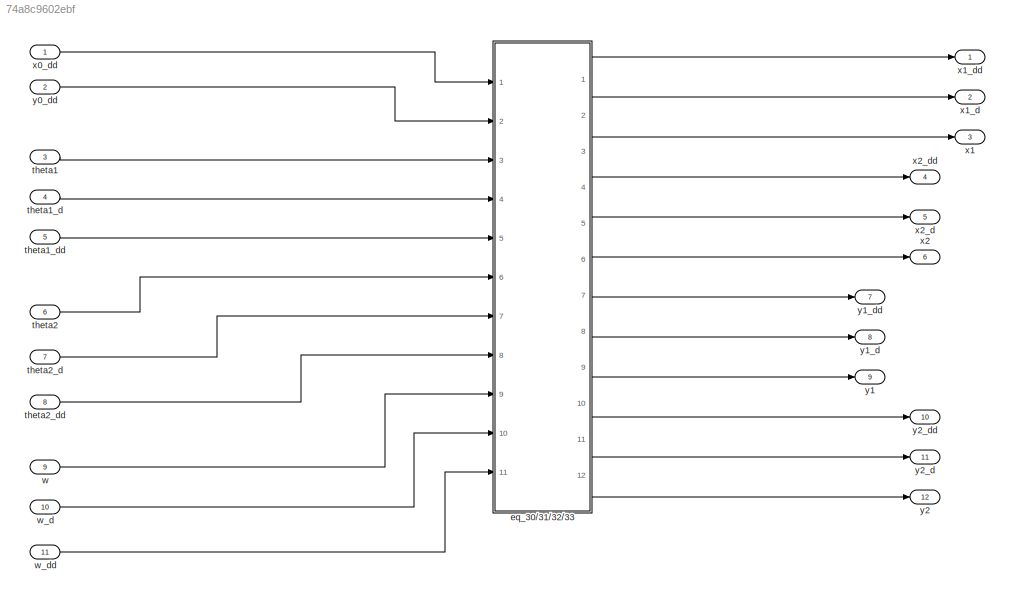
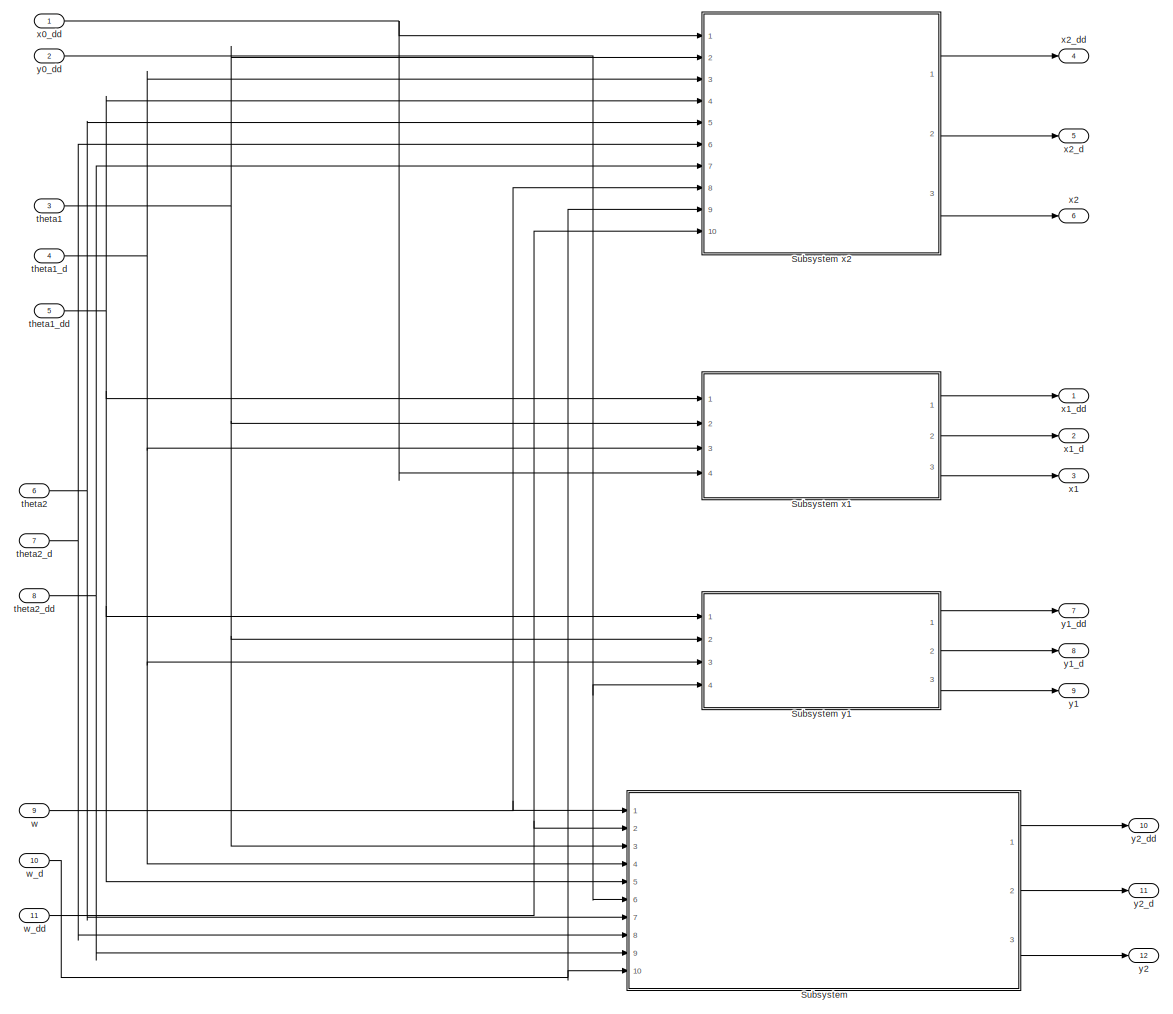
[diagram: eq_30/31/32/33  - part 1/1, most of the canvas]
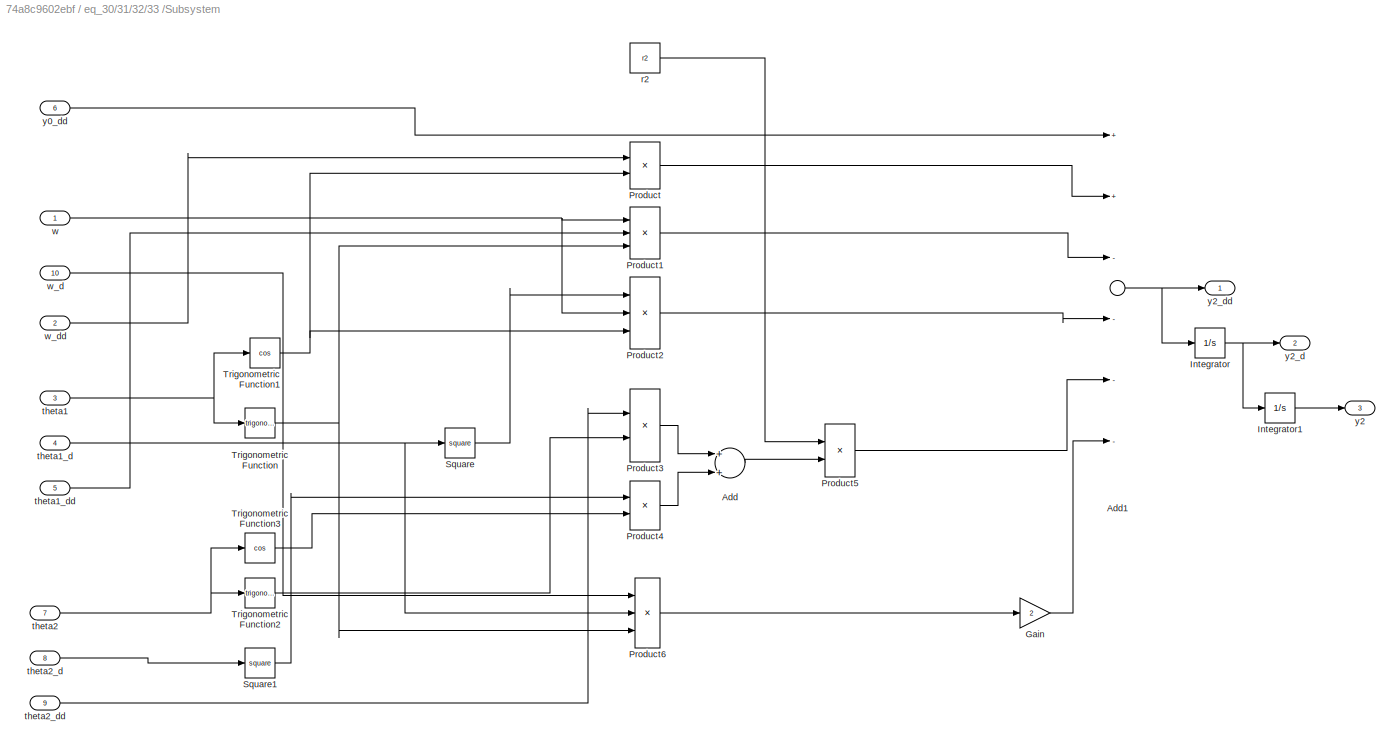
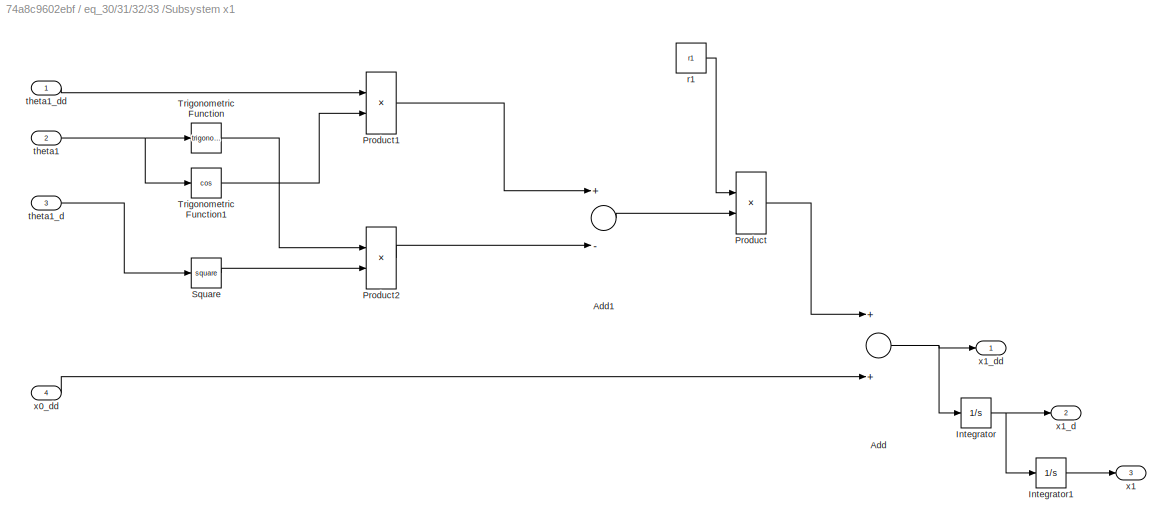
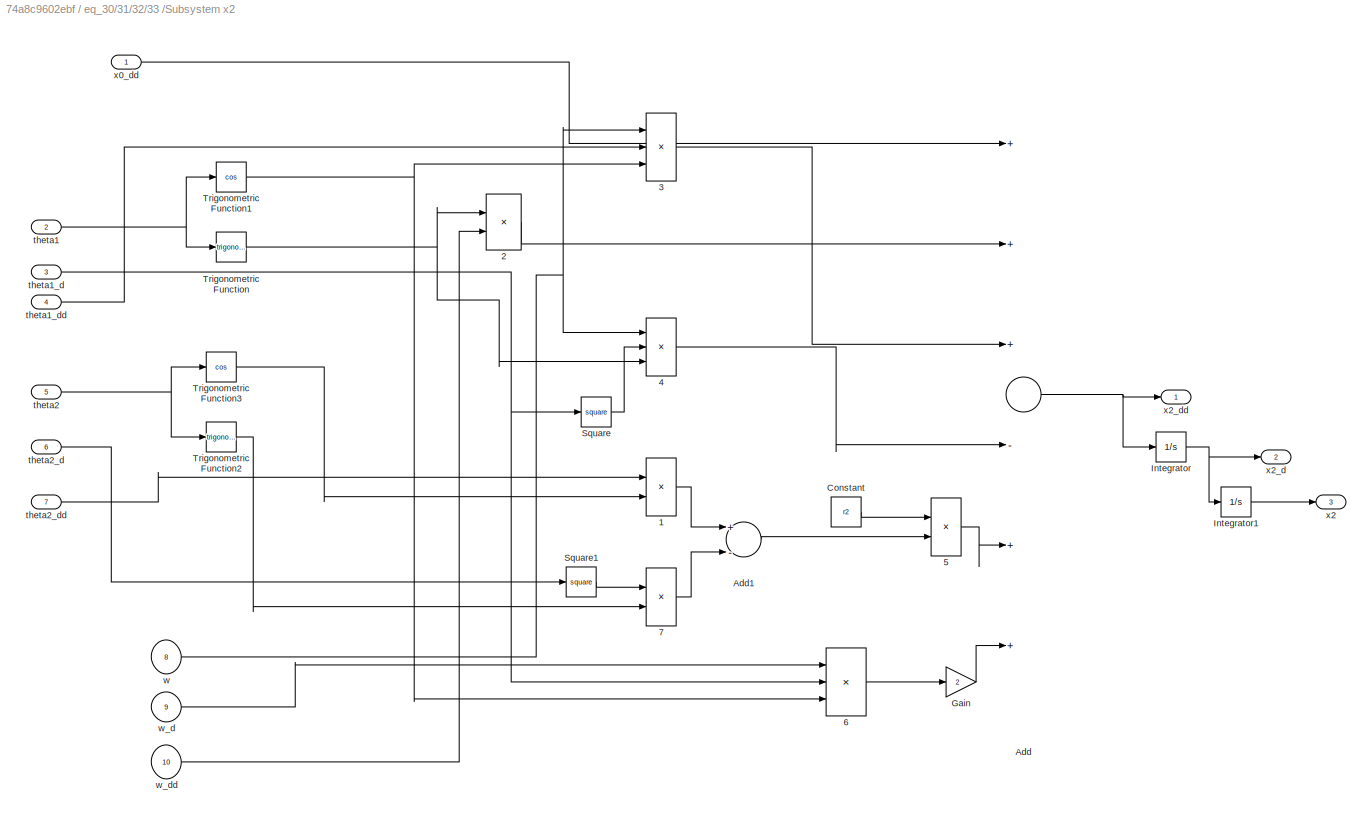
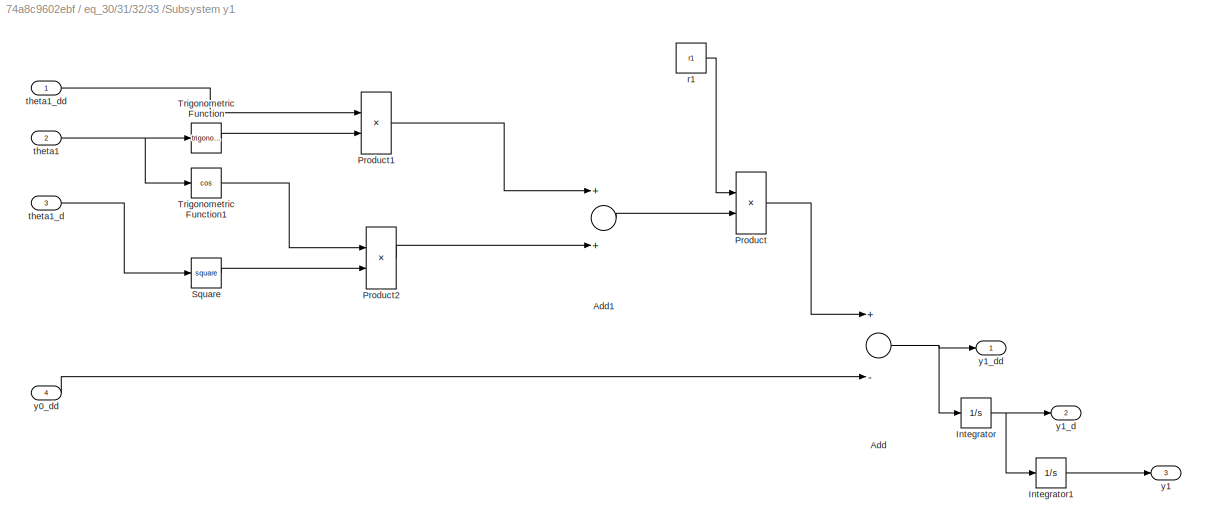
MODEL slx_74a8c9602ebf
KIND model
CONFIG AbsTol = auto
CONFIG EnableMultiTasking = off
CONFIG FixedStep = auto
CONFIG MaxStep = auto
CONFIG MinStep = auto
CONFIG RelTol = 1e-3
CONFIG SampleTimeConstraint = Unconstrained
CONFIG Solver = VariableStepAuto
CONFIG SolverName = VariableStepAuto
CONFIG StartTime = 0.0
CONFIG StopTime = 10.0
BLOCK [SubSystem] eq_30//31//32//33 
  Ports = [11, 12]
  RequestExecContextInheritance = off
BLOCK [SubSystem] eq_30//31//32//33 /Subsystem
  Ports = [10, 3]
  RequestExecContextInheritance = off
BLOCK [SubSystem] eq_30//31//32//33 /Subsystem x1
  Ports = [4, 3]
  RequestExecContextInheritance = off
BLOCK [Sum] eq_30//31//32//33 /Subsystem x1/Add
  InputSameDT = off
  OutDataTypeStr = Inherit: Inherit via internal rule
  Ports = [2, 1]
  SaturateOnIntegerOverflow = off
BLOCK [Sum] eq_30//31//32//33 /Subsystem x1/Add1
  InputSameDT = off
  Inputs = +-
  OutDataTypeStr = Inherit: Inherit via internal rule
  Ports = [2, 1]
  SaturateOnIntegerOverflow = off
BLOCK [Integrator] eq_30//31//32//33 /Subsystem x1/Integrator
  InitialCondition = ini_x1_d
  Ports = [1, 1]
BLOCK [Integrator] eq_30//31//32//33 /Subsystem x1/Integrator1
  InitialCondition = ini_x1
  Ports = [1, 1]
BLOCK [Product] eq_30//31//32//33 /Subsystem x1/Product
  InputSameDT = off
  OutDataTypeStr = Inherit: Inherit via internal rule
  Ports = [2, 1]
  RndMeth = Floor
  SaturateOnIntegerOverflow = off
BLOCK [Product] eq_30//31//32//33 /Subsystem x1/Product1
  InputSameDT = off
  OutDataTypeStr = Inherit: Inherit via internal rule
  Ports = [2, 1]
  RndMeth = Floor
  SaturateOnIntegerOverflow = off
BLOCK [Product] eq_30//31//32//33 /Subsystem x1/Product2
  InputSameDT = off
  OutDataTypeStr = Inherit: Inherit via internal rule
  Ports = [2, 1]
  RndMeth = Floor
  SaturateOnIntegerOverflow = off
BLOCK [Math] eq_30//31//32//33 /Subsystem x1/Square
  Operator = square
  Ports = [1, 1]
  SignedPower = off
BLOCK [Trigonometry] eq_30//31//32//33 /Subsystem x1/Trigonometric Function
  Ports = [1, 1]
BLOCK [Trigonometry] eq_30//31//32//33 /Subsystem x1/Trigonometric Function1
  Operator = cos
  Ports = [1, 1]
BLOCK [Constant] eq_30//31//32//33 /Subsystem x1/r1
  Value = r1
BLOCK [Inport] eq_30//31//32//33 /Subsystem x1/theta1
  IconDisplay = Port number
  Port = 2
BLOCK [Inport] eq_30//31//32//33 /Subsystem x1/theta1_d
  IconDisplay = Port number
  Port = 3
BLOCK [Inport] eq_30//31//32//33 /Subsystem x1/theta1_dd 
  IconDisplay = Port number
BLOCK [Inport] eq_30//31//32//33 /Subsystem x1/x0_dd
  IconDisplay = Port number
  Port = 4
BLOCK [Outport] eq_30//31//32//33 /Subsystem x1/x1
  IconDisplay = Port number
  Port = 3
BLOCK [Outport] eq_30//31//32//33 /Subsystem x1/x1_d
  IconDisplay = Port number
  Port = 2
BLOCK [Outport] eq_30//31//32//33 /Subsystem x1/x1_dd
  IconDisplay = Port number
BLOCK [SubSystem] eq_30//31//32//33 /Subsystem x2
  Ports = [10, 3]
  RequestExecContextInheritance = off
BLOCK [Product] eq_30//31//32//33 /Subsystem x2/1
  InputSameDT = off
  OutDataTypeStr = Inherit: Inherit via internal rule
  Ports = [2, 1]
  RndMeth = Floor
  SaturateOnIntegerOverflow = off
BLOCK [Product] eq_30//31//32//33 /Subsystem x2/2
  InputSameDT = off
  OutDataTypeStr = Inherit: Inherit via internal rule
  Ports = [2, 1]
  RndMeth = Floor
  SaturateOnIntegerOverflow = off
BLOCK [Product] eq_30//31//32//33 /Subsystem x2/3
  InputSameDT = off
  Inputs = 3
  OutDataTypeStr = Inherit: Inherit via internal rule
  Ports = [3, 1]
  RndMeth = Floor
  SaturateOnIntegerOverflow = off
BLOCK [Product] eq_30//31//32//33 /Subsystem x2/4
  InputSameDT = off
  Inputs = 3
  OutDataTypeStr = Inherit: Inherit via internal rule
  Ports = [3, 1]
  RndMeth = Floor
  SaturateOnIntegerOverflow = off
BLOCK [Product] eq_30//31//32//33 /Subsystem x2/5
  InputSameDT = off
  OutDataTypeStr = Inherit: Inherit via internal rule
  Ports = [2, 1]
  RndMeth = Floor
  SaturateOnIntegerOverflow = off
BLOCK [Product] eq_30//31//32//33 /Subsystem x2/6
  InputSameDT = off
  Inputs = 3
  OutDataTypeStr = Inherit: Inherit via internal rule
  Ports = [3, 1]
  RndMeth = Floor
  SaturateOnIntegerOverflow = off
BLOCK [Product] eq_30//31//32//33 /Subsystem x2/7
  InputSameDT = off
  OutDataTypeStr = Inherit: Inherit via internal rule
  Ports = [2, 1]
  RndMeth = Floor
  SaturateOnIntegerOverflow = off
BLOCK [Sum] eq_30//31//32//33 /Subsystem x2/Add
  InputSameDT = off
  Inputs = +++-++
  OutDataTypeStr = Inherit: Inherit via internal rule
  Ports = [6, 1]
  SaturateOnIntegerOverflow = off
BLOCK [Sum] eq_30//31//32//33 /Subsystem x2/Add1
  InputSameDT = off
  Inputs = +-
  OutDataTypeStr = Inherit: Inherit via internal rule
  Ports = [2, 1]
  SaturateOnIntegerOverflow = off
BLOCK [Constant] eq_30//31//32//33 /Subsystem x2/Constant
  Value = r2
BLOCK [Gain] eq_30//31//32//33 /Subsystem x2/Gain
  Gain = 2
  OutDataTypeStr = Inherit: Inherit via internal rule
  ParamDataTypeStr = Inherit: Inherit via internal rule
  SaturateOnIntegerOverflow = off
BLOCK [Integrator] eq_30//31//32//33 /Subsystem x2/Integrator
  InitialCondition = ini_x2_d
  Ports = [1, 1]
BLOCK [Integrator] eq_30//31//32//33 /Subsystem x2/Integrator1
  InitialCondition = ini_x2
  Ports = [1, 1]
BLOCK [Math] eq_30//31//32//33 /Subsystem x2/Square
  Operator = square
  Ports = [1, 1]
  SignedPower = off
BLOCK [Math] eq_30//31//32//33 /Subsystem x2/Square1
  Operator = square
  Ports = [1, 1]
  SignedPower = off
BLOCK [Trigonometry] eq_30//31//32//33 /Subsystem x2/Trigonometric Function
  Ports = [1, 1]
BLOCK [Trigonometry] eq_30//31//32//33 /Subsystem x2/Trigonometric Function1
  Operator = cos
  Ports = [1, 1]
BLOCK [Trigonometry] eq_30//31//32//33 /Subsystem x2/Trigonometric Function2
  Ports = [1, 1]
BLOCK [Trigonometry] eq_30//31//32//33 /Subsystem x2/Trigonometric Function3
  Operator = cos
  Ports = [1, 1]
BLOCK [Inport] eq_30//31//32//33 /Subsystem x2/theta1
  IconDisplay = Port number
  Port = 2
BLOCK [Inport] eq_30//31//32//33 /Subsystem x2/theta1_d
  IconDisplay = Port number
  Port = 3
BLOCK [Inport] eq_30//31//32//33 /Subsystem x2/theta1_dd
  IconDisplay = Port number
  Port = 4
BLOCK [Inport] eq_30//31//32//33 /Subsystem x2/theta2
  IconDisplay = Port number
  Port = 5
BLOCK [Inport] eq_30//31//32//33 /Subsystem x2/theta2_d
  IconDisplay = Port number
  Port = 6
BLOCK [Inport] eq_30//31//32//33 /Subsystem x2/theta2_dd 
  IconDisplay = Port number
  Port = 7
BLOCK [Inport] eq_30//31//32//33 /Subsystem x2/w
  IconDisplay = Port number
  Port = 8
BLOCK [Inport] eq_30//31//32//33 /Subsystem x2/w_d
  IconDisplay = Port number
  Port = 9
BLOCK [Inport] eq_30//31//32//33 /Subsystem x2/w_dd
  IconDisplay = Port number
  Port = 10
BLOCK [Inport] eq_30//31//32//33 /Subsystem x2/x0_dd
  IconDisplay = Port number
BLOCK [Outport] eq_30//31//32//33 /Subsystem x2/x2
  IconDisplay = Port number
  Port = 3
BLOCK [Outport] eq_30//31//32//33 /Subsystem x2/x2_d
  IconDisplay = Port number
  Port = 2
BLOCK [Outport] eq_30//31//32//33 /Subsystem x2/x2_dd
  IconDisplay = Port number
BLOCK [SubSystem] eq_30//31//32//33 /Subsystem y1
  Ports = [4, 3]
  RequestExecContextInheritance = off
BLOCK [Sum] eq_30//31//32//33 /Subsystem y1/Add
  InputSameDT = off
  Inputs = +-
  OutDataTypeStr = Inherit: Inherit via internal rule
  Ports = [2, 1]
  SaturateOnIntegerOverflow = off
BLOCK [Sum] eq_30//31//32//33 /Subsystem y1/Add1
  InputSameDT = off
  OutDataTypeStr = Inherit: Inherit via internal rule
  Ports = [2, 1]
  SaturateOnIntegerOverflow = off
BLOCK [Integrator] eq_30//31//32//33 /Subsystem y1/Integrator
  InitialCondition = ini_y1_d
  Ports = [1, 1]
BLOCK [Integrator] eq_30//31//32//33 /Subsystem y1/Integrator1
  InitialCondition = ini_y1
  Ports = [1, 1]
BLOCK [Product] eq_30//31//32//33 /Subsystem y1/Product
  InputSameDT = off
  OutDataTypeStr = Inherit: Inherit via internal rule
  Ports = [2, 1]
  RndMeth = Floor
  SaturateOnIntegerOverflow = off
BLOCK [Product] eq_30//31//32//33 /Subsystem y1/Product1
  InputSameDT = off
  OutDataTypeStr = Inherit: Inherit via internal rule
  Ports = [2, 1]
  RndMeth = Floor
  SaturateOnIntegerOverflow = off
BLOCK [Product] eq_30//31//32//33 /Subsystem y1/Product2
  InputSameDT = off
  OutDataTypeStr = Inherit: Inherit via internal rule
  Ports = [2, 1]
  RndMeth = Floor
  SaturateOnIntegerOverflow = off
BLOCK [Math] eq_30//31//32//33 /Subsystem y1/Square
  Operator = square
  Ports = [1, 1]
  SignedPower = off
BLOCK [Trigonometry] eq_30//31//32//33 /Subsystem y1/Trigonometric Function
  Ports = [1, 1]
BLOCK [Trigonometry] eq_30//31//32//33 /Subsystem y1/Trigonometric Function1
  Operator = cos
  Ports = [1, 1]
BLOCK [Constant] eq_30//31//32//33 /Subsystem y1/r1
  Value = r1
BLOCK [Inport] eq_30//31//32//33 /Subsystem y1/theta1
  IconDisplay = Port number
  Port = 2
BLOCK [Inport] eq_30//31//32//33 /Subsystem y1/theta1_d
  IconDisplay = Port number
  Port = 3
BLOCK [Inport] eq_30//31//32//33 /Subsystem y1/theta1_dd 
  IconDisplay = Port number
BLOCK [Inport] eq_30//31//32//33 /Subsystem y1/y0_dd
  IconDisplay = Port number
  Port = 4
BLOCK [Outport] eq_30//31//32//33 /Subsystem y1/y1
  IconDisplay = Port number
  Port = 3
BLOCK [Outport] eq_30//31//32//33 /Subsystem y1/y1_d
  IconDisplay = Port number
  Port = 2
BLOCK [Outport] eq_30//31//32//33 /Subsystem y1/y1_dd
  IconDisplay = Port number
BLOCK [Sum] eq_30//31//32//33 /Subsystem/Add
  InputSameDT = off
  OutDataTypeStr = Inherit: Inherit via internal rule
  Ports = [2, 1]
  SaturateOnIntegerOverflow = off
BLOCK [Sum] eq_30//31//32//33 /Subsystem/Add1
  InputSameDT = off
  Inputs = ++----
  OutDataTypeStr = Inherit: Inherit via internal rule
  Ports = [6, 1]
  SaturateOnIntegerOverflow = off
BLOCK [Gain] eq_30//31//32//33 /Subsystem/Gain
  Gain = 2
  OutDataTypeStr = Inherit: Inherit via internal rule
  ParamDataTypeStr = Inherit: Inherit via internal rule
  SaturateOnIntegerOverflow = off
BLOCK [Integrator] eq_30//31//32//33 /Subsystem/Integrator
  InitialCondition = ini_y2_d
  Ports = [1, 1]
BLOCK [Integrator] eq_30//31//32//33 /Subsystem/Integrator1
  InitialCondition = ini_y2
  Ports = [1, 1]
BLOCK [Product] eq_30//31//32//33 /Subsystem/Product
  InputSameDT = off
  OutDataTypeStr = Inherit: Inherit via internal rule
  Ports = [2, 1]
  RndMeth = Floor
  SaturateOnIntegerOverflow = off
BLOCK [Product] eq_30//31//32//33 /Subsystem/Product1
  InputSameDT = off
  Inputs = 3
  OutDataTypeStr = Inherit: Inherit via internal rule
  Ports = [3, 1]
  RndMeth = Floor
  SaturateOnIntegerOverflow = off
BLOCK [Product] eq_30//31//32//33 /Subsystem/Product2
  InputSameDT = off
  Inputs = 3
  OutDataTypeStr = Inherit: Inherit via internal rule
  Ports = [3, 1]
  RndMeth = Floor
  SaturateOnIntegerOverflow = off
BLOCK [Product] eq_30//31//32//33 /Subsystem/Product3
  InputSameDT = off
  OutDataTypeStr = Inherit: Inherit via internal rule
  Ports = [2, 1]
  RndMeth = Floor
  SaturateOnIntegerOverflow = off
BLOCK [Product] eq_30//31//32//33 /Subsystem/Product4
  InputSameDT = off
  OutDataTypeStr = Inherit: Inherit via internal rule
  Ports = [2, 1]
  RndMeth = Floor
  SaturateOnIntegerOverflow = off
BLOCK [Product] eq_30//31//32//33 /Subsystem/Product5
  InputSameDT = off
  OutDataTypeStr = Inherit: Inherit via internal rule
  Ports = [2, 1]
  RndMeth = Floor
  SaturateOnIntegerOverflow = off
BLOCK [Product] eq_30//31//32//33 /Subsystem/Product6
  InputSameDT = off
  Inputs = 3
  OutDataTypeStr = Inherit: Inherit via internal rule
  Ports = [3, 1]
  RndMeth = Floor
  SaturateOnIntegerOverflow = off
BLOCK [Math] eq_30//31//32//33 /Subsystem/Square
  Operator = square
  Ports = [1, 1]
  SignedPower = off
BLOCK [Math] eq_30//31//32//33 /Subsystem/Square1
  Operator = square
  Ports = [1, 1]
  SignedPower = off
BLOCK [Trigonometry] eq_30//31//32//33 /Subsystem/Trigonometric Function
  Ports = [1, 1]
BLOCK [Trigonometry] eq_30//31//32//33 /Subsystem/Trigonometric Function1
  Operator = cos
  Ports = [1, 1]
BLOCK [Trigonometry] eq_30//31//32//33 /Subsystem/Trigonometric Function2
  Ports = [1, 1]
BLOCK [Trigonometry] eq_30//31//32//33 /Subsystem/Trigonometric Function3
  Operator = cos
  Ports = [1, 1]
BLOCK [Constant] eq_30//31//32//33 /Subsystem/r2
  Value = r2
BLOCK [Inport] eq_30//31//32//33 /Subsystem/theta1
  IconDisplay = Port number
  Port = 3
BLOCK [Inport] eq_30//31//32//33 /Subsystem/theta1_d
  IconDisplay = Port number
  Port = 4
BLOCK [Inport] eq_30//31//32//33 /Subsystem/theta1_dd
  IconDisplay = Port number
  Port = 5
BLOCK [Inport] eq_30//31//32//33 /Subsystem/theta2
  IconDisplay = Port number
  Port = 7
BLOCK [Inport] eq_30//31//32//33 /Subsystem/theta2_d
  IconDisplay = Port number
  Port = 8
BLOCK [Inport] eq_30//31//32//33 /Subsystem/theta2_dd
  IconDisplay = Port number
  Port = 9
BLOCK [Inport] eq_30//31//32//33 /Subsystem/w
  IconDisplay = Port number
BLOCK [Inport] eq_30//31//32//33 /Subsystem/w_d
  IconDisplay = Port number
  Port = 10
BLOCK [Inport] eq_30//31//32//33 /Subsystem/w_dd
  IconDisplay = Port number
  Port = 2
BLOCK [Inport] eq_30//31//32//33 /Subsystem/y0_dd
  IconDisplay = Port number
  Port = 6
BLOCK [Outport] eq_30//31//32//33 /Subsystem/y2
  IconDisplay = Port number
  Port = 3
BLOCK [Outport] eq_30//31//32//33 /Subsystem/y2_d
  IconDisplay = Port number
  Port = 2
BLOCK [Outport] eq_30//31//32//33 /Subsystem/y2_dd
  IconDisplay = Port number
BLOCK [Inport] eq_30//31//32//33 /theta1
  IconDisplay = Port number
  Port = 3
BLOCK [Inport] eq_30//31//32//33 /theta1_d
  IconDisplay = Port number
  Port = 4
BLOCK [Inport] eq_30//31//32//33 /theta1_dd
  IconDisplay = Port number
  Port = 5
BLOCK [Inport] eq_30//31//32//33 /theta2
  IconDisplay = Port number
  Port = 6
BLOCK [Inport] eq_30//31//32//33 /theta2_d
  IconDisplay = Port number
  Port = 7
BLOCK [Inport] eq_30//31//32//33 /theta2_dd
  IconDisplay = Port number
  Port = 8
BLOCK [Inport] eq_30//31//32//33 /w
  IconDisplay = Port number
  Port = 9
BLOCK [Inport] eq_30//31//32//33 /w_d
  IconDisplay = Port number
  Port = 10
BLOCK [Inport] eq_30//31//32//33 /w_dd
  IconDisplay = Port number
  Port = 11
BLOCK [Inport] eq_30//31//32//33 /x0_dd
  IconDisplay = Port number
BLOCK [Outport] eq_30//31//32//33 /x1
  IconDisplay = Port number
  Port = 3
BLOCK [Outport] eq_30//31//32//33 /x1_d
  IconDisplay = Port number
  Port = 2
BLOCK [Outport] eq_30//31//32//33 /x1_dd
  IconDisplay = Port number
BLOCK [Outport] eq_30//31//32//33 /x2
  IconDisplay = Port number
  Port = 6
BLOCK [Outport] eq_30//31//32//33 /x2_d
  IconDisplay = Port number
  Port = 5
BLOCK [Outport] eq_30//31//32//33 /x2_dd
  IconDisplay = Port number
  Port = 4
BLOCK [Inport] eq_30//31//32//33 /y0_dd
  IconDisplay = Port number
  Port = 2
BLOCK [Outport] eq_30//31//32//33 /y1
  IconDisplay = Port number
  Port = 9
BLOCK [Outport] eq_30//31//32//33 /y1_d
  IconDisplay = Port number
  Port = 8
BLOCK [Outport] eq_30//31//32//33 /y1_dd
  IconDisplay = Port number
  Port = 7
BLOCK [Outport] eq_30//31//32//33 /y2
  IconDisplay = Port number
  Port = 12
BLOCK [Outport] eq_30//31//32//33 /y2_d
  IconDisplay = Port number
  Port = 11
BLOCK [Outport] eq_30//31//32//33 /y2_dd
  IconDisplay = Port number
  Port = 10
BLOCK [Inport] theta1
  IconDisplay = Port number
  Port = 3
BLOCK [Inport] theta1_d
  IconDisplay = Port number
  Port = 4
BLOCK [Inport] theta1_dd
  IconDisplay = Port number
  Port = 5
BLOCK [Inport] theta2
  IconDisplay = Port number
  Port = 6
BLOCK [Inport] theta2_d
  IconDisplay = Port number
  Port = 7
BLOCK [Inport] theta2_dd
  IconDisplay = Port number
  Port = 8
BLOCK [Inport] w
  IconDisplay = Port number
  Port = 9
BLOCK [Inport] w_d
  IconDisplay = Port number
  Port = 10
BLOCK [Inport] w_dd
  IconDisplay = Port number
  Port = 11
BLOCK [Inport] x0_dd
  IconDisplay = Port number
BLOCK [Outport] x1
  IconDisplay = Port number
  Port = 3
BLOCK [Outport] x1_d
  IconDisplay = Port number
  Port = 2
BLOCK [Outport] x1_dd
  IconDisplay = Port number
BLOCK [Outport] x2
  IconDisplay = Port number
  Port = 6
BLOCK [Outport] x2_d
  IconDisplay = Port number
  Port = 5
BLOCK [Outport] x2_dd
  IconDisplay = Port number
  Port = 4
BLOCK [Inport] y0_dd
  IconDisplay = Port number
  Port = 2
BLOCK [Outport] y1
  IconDisplay = Port number
  Port = 9
BLOCK [Outport] y1_d
  IconDisplay = Port number
  Port = 8
BLOCK [Outport] y1_dd
  IconDisplay = Port number
  Port = 7
BLOCK [Outport] y2
  IconDisplay = Port number
  Port = 12
BLOCK [Outport] y2_d
  IconDisplay = Port number
  Port = 11
BLOCK [Outport] y2_dd
  IconDisplay = Port number
  Port = 10
LINE eq_30//31//32//33 /Subsystem x1/Add1:1 -> eq_30//31//32//33 /Subsystem x1/Product:2
NET eq_30//31//32//33 /Subsystem x1/Add:1 -> eq_30//31//32//33 /Subsystem x1/Integrator:1, eq_30//31//32//33 /Subsystem x1/x1_dd:1
LINE eq_30//31//32//33 /Subsystem x1/Integrator1:1 -> eq_30//31//32//33 /Subsystem x1/x1:1
NET eq_30//31//32//33 /Subsystem x1/Integrator:1 -> eq_30//31//32//33 /Subsystem x1/Integrator1:1, eq_30//31//32//33 /Subsystem x1/x1_d:1
LINE eq_30//31//32//33 /Subsystem x1/Product1:1 -> eq_30//31//32//33 /Subsystem x1/Add1:1
LINE eq_30//31//32//33 /Subsystem x1/Product2:1 -> eq_30//31//32//33 /Subsystem x1/Add1:2
LINE eq_30//31//32//33 /Subsystem x1/Product:1 -> eq_30//31//32//33 /Subsystem x1/Add:1
LINE eq_30//31//32//33 /Subsystem x1/Square:1 -> eq_30//31//32//33 /Subsystem x1/Product2:2
LINE eq_30//31//32//33 /Subsystem x1/Trigonometric Function1:1 -> eq_30//31//32//33 /Subsystem x1/Product1:2
LINE eq_30//31//32//33 /Subsystem x1/Trigonometric Function:1 -> eq_30//31//32//33 /Subsystem x1/Product2:1
LINE eq_30//31//32//33 /Subsystem x1/r1:1 -> eq_30//31//32//33 /Subsystem x1/Product:1
NET eq_30//31//32//33 /Subsystem x1/theta1:1 -> eq_30//31//32//33 /Subsystem x1/Trigonometric Function1:1, eq_30//31//32//33 /Subsystem x1/Trigonometric Function:1
LINE eq_30//31//32//33 /Subsystem x1/theta1_d:1 -> eq_30//31//32//33 /Subsystem x1/Square:1
LINE eq_30//31//32//33 /Subsystem x1/theta1_dd :1 -> eq_30//31//32//33 /Subsystem x1/Product1:1
LINE eq_30//31//32//33 /Subsystem x1/x0_dd:1 -> eq_30//31//32//33 /Subsystem x1/Add:2
LINE eq_30//31//32//33 /Subsystem x1:1 -> eq_30//31//32//33 /x1_dd:1
LINE eq_30//31//32//33 /Subsystem x1:2 -> eq_30//31//32//33 /x1_d:1
LINE eq_30//31//32//33 /Subsystem x1:3 -> eq_30//31//32//33 /x1:1
LINE eq_30//31//32//33 /Subsystem x2/1:1 -> eq_30//31//32//33 /Subsystem x2/Add1:1
LINE eq_30//31//32//33 /Subsystem x2/2:1 -> eq_30//31//32//33 /Subsystem x2/Add:2
LINE eq_30//31//32//33 /Subsystem x2/3:1 -> eq_30//31//32//33 /Subsystem x2/Add:3
LINE eq_30//31//32//33 /Subsystem x2/4:1 -> eq_30//31//32//33 /Subsystem x2/Add:4
LINE eq_30//31//32//33 /Subsystem x2/5:1 -> eq_30//31//32//33 /Subsystem x2/Add:5
LINE eq_30//31//32//33 /Subsystem x2/6:1 -> eq_30//31//32//33 /Subsystem x2/Gain:1
LINE eq_30//31//32//33 /Subsystem x2/7:1 -> eq_30//31//32//33 /Subsystem x2/Add1:2
LINE eq_30//31//32//33 /Subsystem x2/Add1:1 -> eq_30//31//32//33 /Subsystem x2/5:2
NET eq_30//31//32//33 /Subsystem x2/Add:1 -> eq_30//31//32//33 /Subsystem x2/Integrator:1, eq_30//31//32//33 /Subsystem x2/x2_dd:1
LINE eq_30//31//32//33 /Subsystem x2/Constant:1 -> eq_30//31//32//33 /Subsystem x2/5:1
LINE eq_30//31//32//33 /Subsystem x2/Gain:1 -> eq_30//31//32//33 /Subsystem x2/Add:6
LINE eq_30//31//32//33 /Subsystem x2/Integrator1:1 -> eq_30//31//32//33 /Subsystem x2/x2:1
NET eq_30//31//32//33 /Subsystem x2/Integrator:1 -> eq_30//31//32//33 /Subsystem x2/Integrator1:1, eq_30//31//32//33 /Subsystem x2/x2_d:1
LINE eq_30//31//32//33 /Subsystem x2/Square1:1 -> eq_30//31//32//33 /Subsystem x2/7:1
LINE eq_30//31//32//33 /Subsystem x2/Square:1 -> eq_30//31//32//33 /Subsystem x2/4:2
NET eq_30//31//32//33 /Subsystem x2/Trigonometric Function1:1 -> eq_30//31//32//33 /Subsystem x2/3:3, eq_30//31//32//33 /Subsystem x2/6:3
LINE eq_30//31//32//33 /Subsystem x2/Trigonometric Function2:1 -> eq_30//31//32//33 /Subsystem x2/7:2
LINE eq_30//31//32//33 /Subsystem x2/Trigonometric Function3:1 -> eq_30//31//32//33 /Subsystem x2/1:2
NET eq_30//31//32//33 /Subsystem x2/Trigonometric Function:1 -> eq_30//31//32//33 /Subsystem x2/2:1, eq_30//31//32//33 /Subsystem x2/4:3
NET eq_30//31//32//33 /Subsystem x2/theta1:1 -> eq_30//31//32//33 /Subsystem x2/Trigonometric Function1:1, eq_30//31//32//33 /Subsystem x2/Trigonometric Function:1
NET eq_30//31//32//33 /Subsystem x2/theta1_d:1 -> eq_30//31//32//33 /Subsystem x2/6:2, eq_30//31//32//33 /Subsystem x2/Square:1
LINE eq_30//31//32//33 /Subsystem x2/theta1_dd:1 -> eq_30//31//32//33 /Subsystem x2/3:2
NET eq_30//31//32//33 /Subsystem x2/theta2:1 -> eq_30//31//32//33 /Subsystem x2/Trigonometric Function2:1, eq_30//31//32//33 /Subsystem x2/Trigonometric Function3:1
LINE eq_30//31//32//33 /Subsystem x2/theta2_d:1 -> eq_30//31//32//33 /Subsystem x2/Square1:1
LINE eq_30//31//32//33 /Subsystem x2/theta2_dd :1 -> eq_30//31//32//33 /Subsystem x2/1:1
NET eq_30//31//32//33 /Subsystem x2/w:1 -> eq_30//31//32//33 /Subsystem x2/3:1, eq_30//31//32//33 /Subsystem x2/4:1
LINE eq_30//31//32//33 /Subsystem x2/w_d:1 -> eq_30//31//32//33 /Subsystem x2/6:1
LINE eq_30//31//32//33 /Subsystem x2/w_dd:1 -> eq_30//31//32//33 /Subsystem x2/2:2
LINE eq_30//31//32//33 /Subsystem x2/x0_dd:1 -> eq_30//31//32//33 /Subsystem x2/Add:1
LINE eq_30//31//32//33 /Subsystem x2:1 -> eq_30//31//32//33 /x2_dd:1
LINE eq_30//31//32//33 /Subsystem x2:2 -> eq_30//31//32//33 /x2_d:1
LINE eq_30//31//32//33 /Subsystem x2:3 -> eq_30//31//32//33 /x2:1
LINE eq_30//31//32//33 /Subsystem y1/Add1:1 -> eq_30//31//32//33 /Subsystem y1/Product:2
NET eq_30//31//32//33 /Subsystem y1/Add:1 -> eq_30//31//32//33 /Subsystem y1/Integrator:1, eq_30//31//32//33 /Subsystem y1/y1_dd:1
LINE eq_30//31//32//33 /Subsystem y1/Integrator1:1 -> eq_30//31//32//33 /Subsystem y1/y1:1
NET eq_30//31//32//33 /Subsystem y1/Integrator:1 -> eq_30//31//32//33 /Subsystem y1/Integrator1:1, eq_30//31//32//33 /Subsystem y1/y1_d:1
LINE eq_30//31//32//33 /Subsystem y1/Product1:1 -> eq_30//31//32//33 /Subsystem y1/Add1:1
LINE eq_30//31//32//33 /Subsystem y1/Product2:1 -> eq_30//31//32//33 /Subsystem y1/Add1:2
LINE eq_30//31//32//33 /Subsystem y1/Product:1 -> eq_30//31//32//33 /Subsystem y1/Add:1
LINE eq_30//31//32//33 /Subsystem y1/Square:1 -> eq_30//31//32//33 /Subsystem y1/Product2:2
LINE eq_30//31//32//33 /Subsystem y1/Trigonometric Function1:1 -> eq_30//31//32//33 /Subsystem y1/Product2:1
LINE eq_30//31//32//33 /Subsystem y1/Trigonometric Function:1 -> eq_30//31//32//33 /Subsystem y1/Product1:2
LINE eq_30//31//32//33 /Subsystem y1/r1:1 -> eq_30//31//32//33 /Subsystem y1/Product:1
NET eq_30//31//32//33 /Subsystem y1/theta1:1 -> eq_30//31//32//33 /Subsystem y1/Trigonometric Function1:1, eq_30//31//32//33 /Subsystem y1/Trigonometric Function:1
LINE eq_30//31//32//33 /Subsystem y1/theta1_d:1 -> eq_30//31//32//33 /Subsystem y1/Square:1
LINE eq_30//31//32//33 /Subsystem y1/theta1_dd :1 -> eq_30//31//32//33 /Subsystem y1/Product1:1
LINE eq_30//31//32//33 /Subsystem y1/y0_dd:1 -> eq_30//31//32//33 /Subsystem y1/Add:2
LINE eq_30//31//32//33 /Subsystem y1:1 -> eq_30//31//32//33 /y1_dd:1
LINE eq_30//31//32//33 /Subsystem y1:2 -> eq_30//31//32//33 /y1_d:1
LINE eq_30//31//32//33 /Subsystem y1:3 -> eq_30//31//32//33 /y1:1
NET eq_30//31//32//33 /Subsystem/Add1:1 -> eq_30//31//32//33 /Subsystem/Integrator:1, eq_30//31//32//33 /Subsystem/y2_dd:1
LINE eq_30//31//32//33 /Subsystem/Add:1 -> eq_30//31//32//33 /Subsystem/Product5:2
LINE eq_30//31//32//33 /Subsystem/Gain:1 -> eq_30//31//32//33 /Subsystem/Add1:6
LINE eq_30//31//32//33 /Subsystem/Integrator1:1 -> eq_30//31//32//33 /Subsystem/y2:1
NET eq_30//31//32//33 /Subsystem/Integrator:1 -> eq_30//31//32//33 /Subsystem/Integrator1:1, eq_30//31//32//33 /Subsystem/y2_d:1
LINE eq_30//31//32//33 /Subsystem/Product1:1 -> eq_30//31//32//33 /Subsystem/Add1:3
LINE eq_30//31//32//33 /Subsystem/Product2:1 -> eq_30//31//32//33 /Subsystem/Add1:4
LINE eq_30//31//32//33 /Subsystem/Product3:1 -> eq_30//31//32//33 /Subsystem/Add:1
LINE eq_30//31//32//33 /Subsystem/Product4:1 -> eq_30//31//32//33 /Subsystem/Add:2
LINE eq_30//31//32//33 /Subsystem/Product5:1 -> eq_30//31//32//33 /Subsystem/Add1:5
LINE eq_30//31//32//33 /Subsystem/Product6:1 -> eq_30//31//32//33 /Subsystem/Gain:1
LINE eq_30//31//32//33 /Subsystem/Product:1 -> eq_30//31//32//33 /Subsystem/Add1:2
LINE eq_30//31//32//33 /Subsystem/Square1:1 -> eq_30//31//32//33 /Subsystem/Product4:1
LINE eq_30//31//32//33 /Subsystem/Square:1 -> eq_30//31//32//33 /Subsystem/Product2:1
NET eq_30//31//32//33 /Subsystem/Trigonometric Function1:1 -> eq_30//31//32//33 /Subsystem/Product2:3, eq_30//31//32//33 /Subsystem/Product:2
LINE eq_30//31//32//33 /Subsystem/Trigonometric Function2:1 -> eq_30//31//32//33 /Subsystem/Product3:2
LINE eq_30//31//32//33 /Subsystem/Trigonometric Function3:1 -> eq_30//31//32//33 /Subsystem/Product4:2
NET eq_30//31//32//33 /Subsystem/Trigonometric Function:1 -> eq_30//31//32//33 /Subsystem/Product1:3, eq_30//31//32//33 /Subsystem/Product6:3
LINE eq_30//31//32//33 /Subsystem/r2:1 -> eq_30//31//32//33 /Subsystem/Product5:1
NET eq_30//31//32//33 /Subsystem/theta1:1 -> eq_30//31//32//33 /Subsystem/Trigonometric Function1:1, eq_30//31//32//33 /Subsystem/Trigonometric Function:1
NET eq_30//31//32//33 /Subsystem/theta1_d:1 -> eq_30//31//32//33 /Subsystem/Product6:2, eq_30//31//32//33 /Subsystem/Square:1
LINE eq_30//31//32//33 /Subsystem/theta1_dd:1 -> eq_30//31//32//33 /Subsystem/Product1:2
NET eq_30//31//32//33 /Subsystem/theta2:1 -> eq_30//31//32//33 /Subsystem/Trigonometric Function2:1, eq_30//31//32//33 /Subsystem/Trigonometric Function3:1
LINE eq_30//31//32//33 /Subsystem/theta2_d:1 -> eq_30//31//32//33 /Subsystem/Square1:1
LINE eq_30//31//32//33 /Subsystem/theta2_dd:1 -> eq_30//31//32//33 /Subsystem/Product3:1
NET eq_30//31//32//33 /Subsystem/w:1 -> eq_30//31//32//33 /Subsystem/Product1:1, eq_30//31//32//33 /Subsystem/Product2:2
LINE eq_30//31//32//33 /Subsystem/w_d:1 -> eq_30//31//32//33 /Subsystem/Product6:1
LINE eq_30//31//32//33 /Subsystem/w_dd:1 -> eq_30//31//32//33 /Subsystem/Product:1
LINE eq_30//31//32//33 /Subsystem/y0_dd:1 -> eq_30//31//32//33 /Subsystem/Add1:1
LINE eq_30//31//32//33 /Subsystem:1 -> eq_30//31//32//33 /y2_dd:1
LINE eq_30//31//32//33 /Subsystem:2 -> eq_30//31//32//33 /y2_d:1
LINE eq_30//31//32//33 /Subsystem:3 -> eq_30//31//32//33 /y2:1
NET eq_30//31//32//33 /theta1:1 -> eq_30//31//32//33 /Subsystem x1:2, eq_30//31//32//33 /Subsystem x2:2, eq_30//31//32//33 /Subsystem y1:2, eq_30//31//32//33 /Subsystem:3
NET eq_30//31//32//33 /theta1_d:1 -> eq_30//31//32//33 /Subsystem x1:3, eq_30//31//32//33 /Subsystem x2:3, eq_30//31//32//33 /Subsystem y1:3, eq_30//31//32//33 /Subsystem:4
NET eq_30//31//32//33 /theta1_dd:1 -> eq_30//31//32//33 /Subsystem x1:1, eq_30//31//32//33 /Subsystem x2:4, eq_30//31//32//33 /Subsystem y1:1, eq_30//31//32//33 /Subsystem:5
NET eq_30//31//32//33 /theta2:1 -> eq_30//31//32//33 /Subsystem x2:5, eq_30//31//32//33 /Subsystem:7
NET eq_30//31//32//33 /theta2_d:1 -> eq_30//31//32//33 /Subsystem x2:6, eq_30//31//32//33 /Subsystem:8
NET eq_30//31//32//33 /theta2_dd:1 -> eq_30//31//32//33 /Subsystem x2:7, eq_30//31//32//33 /Subsystem:9
NET eq_30//31//32//33 /w:1 -> eq_30//31//32//33 /Subsystem x2:8, eq_30//31//32//33 /Subsystem:1
NET eq_30//31//32//33 /w_d:1 -> eq_30//31//32//33 /Subsystem x2:9, eq_30//31//32//33 /Subsystem:10
NET eq_30//31//32//33 /w_dd:1 -> eq_30//31//32//33 /Subsystem x2:10, eq_30//31//32//33 /Subsystem:2
NET eq_30//31//32//33 /x0_dd:1 -> eq_30//31//32//33 /Subsystem x1:4, eq_30//31//32//33 /Subsystem x2:1
NET eq_30//31//32//33 /y0_dd:1 -> eq_30//31//32//33 /Subsystem y1:4, eq_30//31//32//33 /Subsystem:6
LINE eq_30//31//32//33 :1 -> x1_dd:1
LINE eq_30//31//32//33 :10 -> y2_dd:1
LINE eq_30//31//32//33 :11 -> y2_d:1
LINE eq_30//31//32//33 :12 -> y2:1
LINE eq_30//31//32//33 :2 -> x1_d:1
LINE eq_30//31//32//33 :3 -> x1:1
LINE eq_30//31//32//33 :4 -> x2_dd:1
LINE eq_30//31//32//33 :5 -> x2_d:1
LINE eq_30//31//32//33 :6 -> x2:1
LINE eq_30//31//32//33 :7 -> y1_dd:1
LINE eq_30//31//32//33 :8 -> y1_d:1
LINE eq_30//31//32//33 :9 -> y1:1
LINE theta1:1 -> eq_30//31//32//33 :3
LINE theta1_d:1 -> eq_30//31//32//33 :4
LINE theta1_dd:1 -> eq_30//31//32//33 :5
LINE theta2:1 -> eq_30//31//32//33 :6
LINE theta2_d:1 -> eq_30//31//32//33 :7
LINE theta2_dd:1 -> eq_30//31//32//33 :8
LINE w:1 -> eq_30//31//32//33 :9
LINE w_d:1 -> eq_30//31//32//33 :10
LINE w_dd:1 -> eq_30//31//32//33 :11
LINE x0_dd:1 -> eq_30//31//32//33 :1
LINE y0_dd:1 -> eq_30//31//32//33 :2
note: NET lines group one-source signal fan-out (src -> all destinations, sorted); 1:1 wires keep LINE
